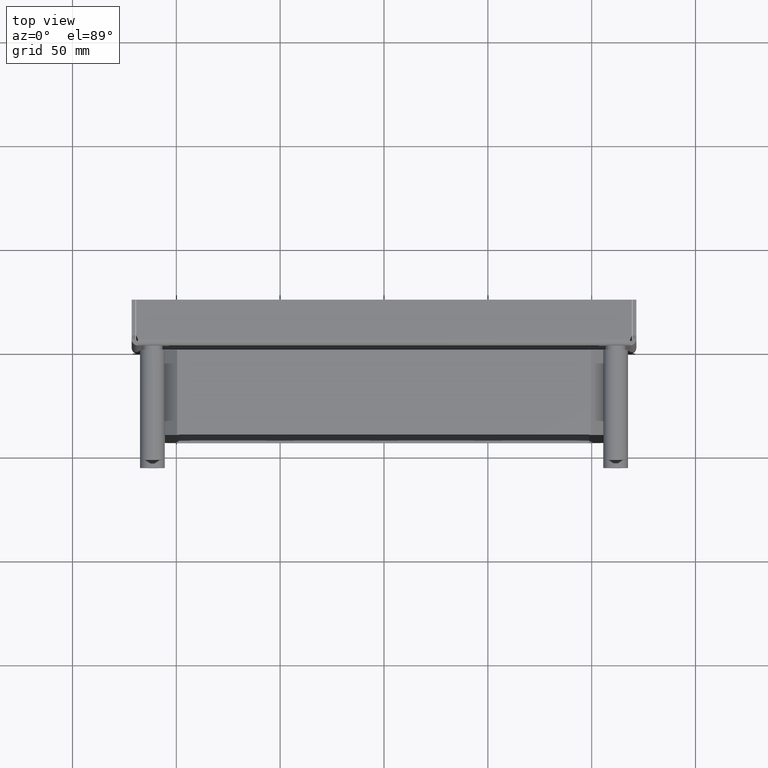
[diagram: clean part render]
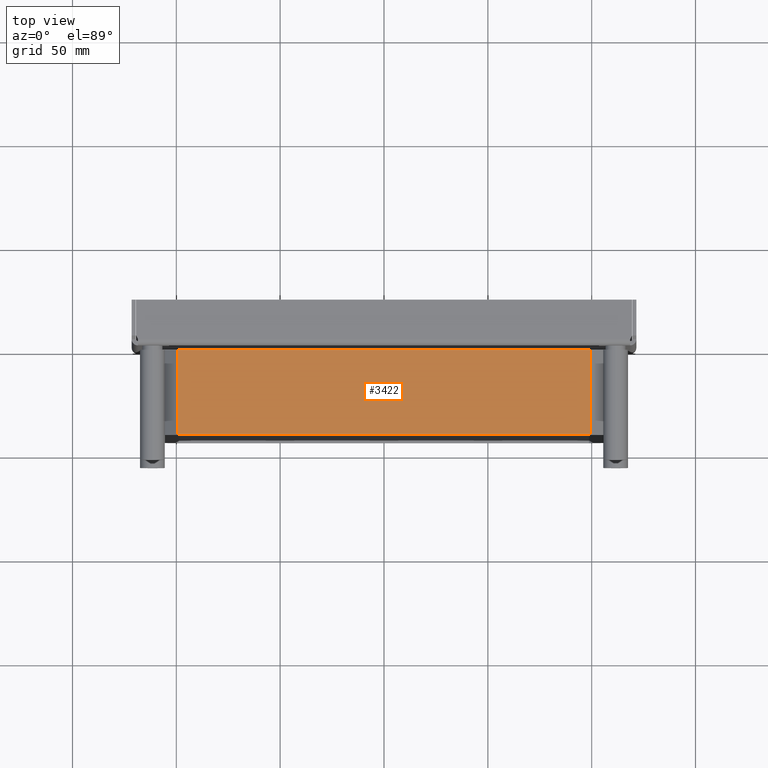
[diagram: same view with one face highlighted and labeled with its STEP entity id]
A machine part, top view. The second image highlights one B-rep face of the part: STEP entity #3422.
In plain terms, the highlighted planar face has unit normal (0, 0, -1).
Its self-contained STEP definition (entity closure, byte-faithful):
#3057=DIRECTION('',(-1.E0,0.E0,0.E0));
#3058=VECTOR('',#3057,1.991582285521E2);
#3059=CARTESIAN_POINT('',(9.957911427604E1,0.E0,1.155E2));
#3060=LINE('',#3059,#3058);
#3111=DIRECTION('',(1.E0,0.E0,0.E0));
#3112=VECTOR('',#3111,1.991582285521E2);
#3113=CARTESIAN_POINT('',(-9.957911427604E1,-4.1E1,1.155E2));
#3114=LINE('',#3113,#3112);
#3187=DIRECTION('',(0.E0,1.E0,0.E0));
#3188=VECTOR('',#3187,4.1E1);
#3189=CARTESIAN_POINT('',(9.957911427604E1,-4.1E1,1.155E2));
#3190=LINE('',#3189,#3188);
#3199=DIRECTION('',(0.E0,-1.E0,0.E0));
#3200=VECTOR('',#3199,4.1E1);
#3201=CARTESIAN_POINT('',(-9.957911427604E1,0.E0,1.155E2));
#3202=LINE('',#3201,#3200);
#3255=CARTESIAN_POINT('',(9.957911427604E1,0.E0,1.155E2));
#3256=VERTEX_POINT('',#3255);
#3257=CARTESIAN_POINT('',(-9.957911427604E1,0.E0,1.155E2));
#3258=VERTEX_POINT('',#3257);
#3283=CARTESIAN_POINT('',(-9.957911427604E1,-4.1E1,1.155E2));
#3284=CARTESIAN_POINT('',(9.957911427604E1,-4.1E1,1.155E2));
#3285=VERTEX_POINT('',#3283);
#3286=VERTEX_POINT('',#3284);
#3409=CARTESIAN_POINT('',(0.E0,0.E0,1.155E2));
#3410=DIRECTION('',(0.E0,0.E0,-1.E0));
#3411=DIRECTION('',(-1.E0,0.E0,0.E0));
#3412=AXIS2_PLACEMENT_3D('',#3409,#3410,#3411);
#3413=PLANE('',#3412);
#3414=ORIENTED_EDGE('',*,*,#3324,.F.);
#3416=ORIENTED_EDGE('',*,*,#3415,.F.);
#3417=ORIENTED_EDGE('',*,*,#3373,.F.);
#3419=ORIENTED_EDGE('',*,*,#3418,.F.);
#3420=EDGE_LOOP('',(#3414,#3416,#3417,#3419));
#3421=FACE_OUTER_BOUND('',#3420,.F.);
#3324=EDGE_CURVE('',#3256,#3258,#3060,.T.);
#3373=EDGE_CURVE('',#3285,#3286,#3114,.T.);
#3415=EDGE_CURVE('',#3286,#3256,#3190,.T.);
#3418=EDGE_CURVE('',#3258,#3285,#3202,.T.);
#3422=ADVANCED_FACE('',(#3421),#3413,.F.);